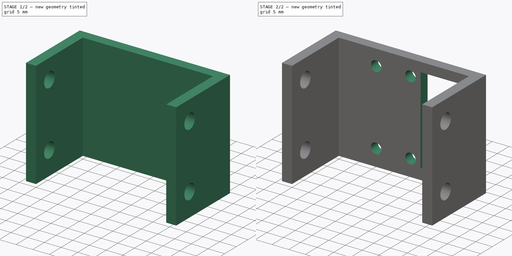
[diagram: build sequence overview — one tinted view per stage of 2, left to right]
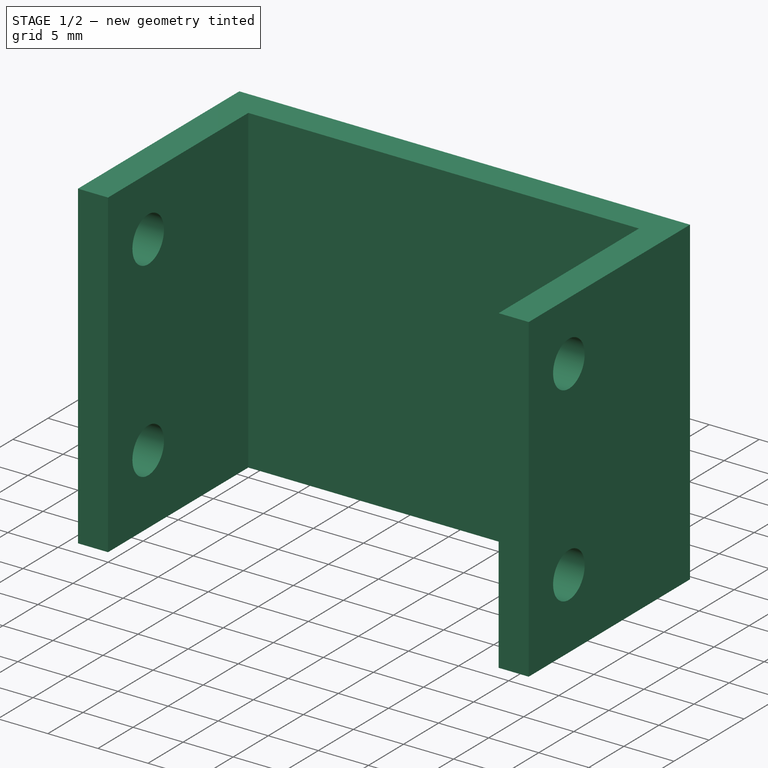
[diagram: stage 1 of 2 — iso view after this stage's code; geometry added in this stage tinted green]
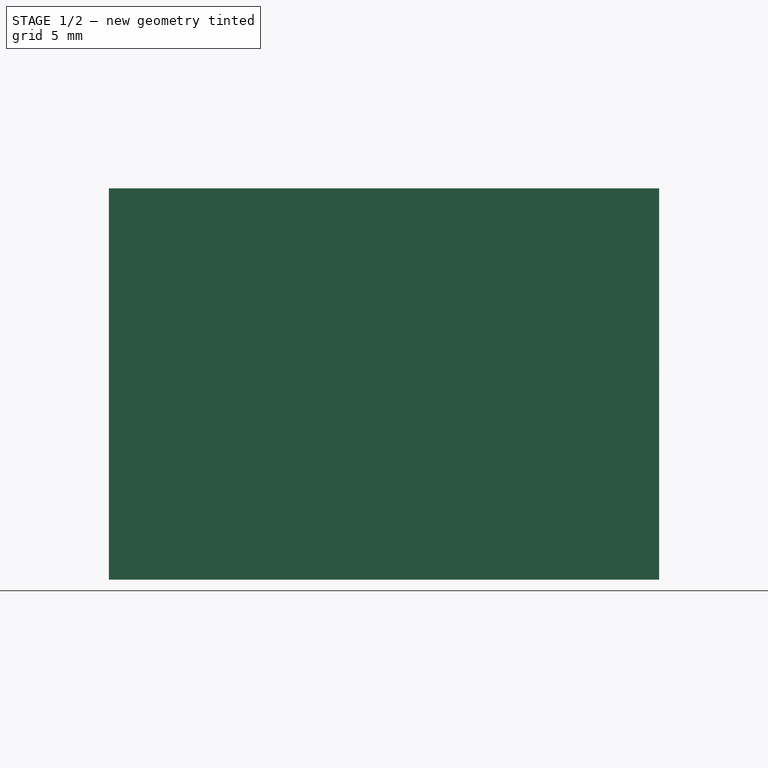
[diagram: stage 1 of 2 — front view after this stage's code; geometry added in this stage tinted green]
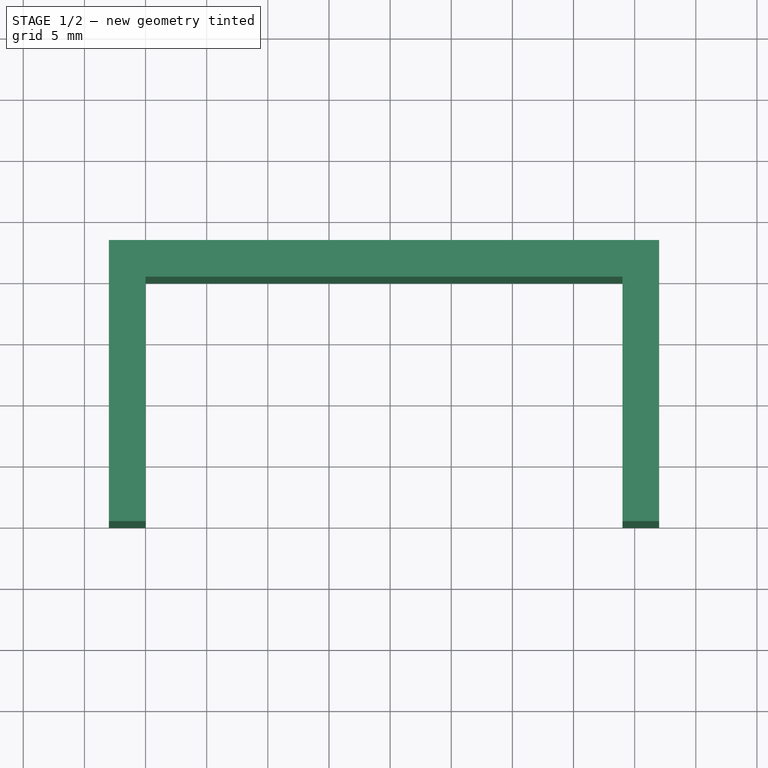
[diagram: stage 1 of 2 — top view after this stage's code; geometry added in this stage tinted green]
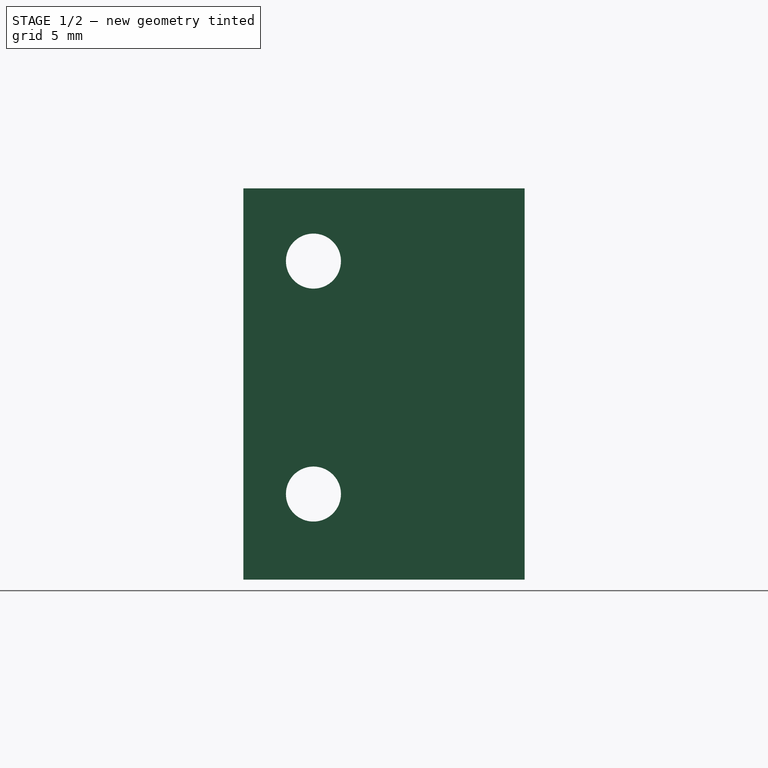
[diagram: stage 1 of 2 — right view after this stage's code; geometry added in this stage tinted green]
FCSTD DOCUMENT  (FreeCAD 0.18.4R)
Label: Soporte_Microswitch
License: All rights reserved
LicenseURL: http://en.wikipedia.org/wiki/All_rights_reserved
objects: Sketcher::SketchObject×3, PartDesign::Pocket×2, PartDesign::Pad×1, PartDesign::Body×1
note: 10 computed .brp shape members not serialized (recipe doc carries the construction recipe); baked Part::Feature solids carry a one-line shape summary decoded from their .brp

FEATURE [Sketcher::SketchObject] Sketch
  MapMode = 5
  Support = -> [XY_Plane]
  expr: Constraints[17] = 38.5 + 0.5
  sketch-geometry (9):
    g0: LineSegment StartX=-3 StartY=3 StartZ=0 EndX=-3 EndY=-20 EndZ=0
    g1: LineSegment StartX=38.5 StartY=0 StartZ=0 EndX=38.5 EndY=0.0202218 EndZ=0
    g2: LineSegment StartX=42 StartY=3 StartZ=0 EndX=42 EndY=-20 EndZ=0
    g3: LineSegment StartX=-3 StartY=-20 StartZ=0 EndX=0 EndY=-20 EndZ=0
    g4: LineSegment StartX=0 StartY=-20 StartZ=0 EndX=0 EndY=0 EndZ=0
    g5: LineSegment StartX=0 StartY=0 StartZ=0 EndX=39 EndY=0 EndZ=0
    g6: LineSegment StartX=39 StartY=0 StartZ=0 EndX=39 EndY=-20 EndZ=0
    g7: LineSegment StartX=39 StartY=-20 StartZ=0 EndX=42 EndY=-20 EndZ=0
    g8: LineSegment StartX=-3 StartY=3 StartZ=0 EndX=42 EndY=3 EndZ=0
  constraints (25):
    c: Vertical(g1)
    c: Vertical(g2)
    c: Equal(g2,g0)
    c: Vertical(g0)
    c: Coincident(g3,g0)
    c: PointOnObject(g3,g-2)
    c: Horizontal(g3)
    c: Coincident(g4,g3)
    c: Coincident(g5,g4)
    c: Horizontal(g5)
    c: Coincident(g6,g5)
    c: Vertical(g6)
    c: Coincident(g7,g6)
    c: Coincident(g7,g2)
    c: Equal(g0,g2)
    c: Horizontal(g7)
    c: DistanceX(g5,g2) = 3
    c: DistanceX(g5,g5) = 39
    c: Coincident(g8,g0)
    c: Coincident(g8,g2)
    c: Horizontal(g8)
    c: DistanceY(g4,g0) = 3
    c: DistanceY(g4,g4) = 20
    c: Equal(g7,g3)
    c: Coincident(g4,g-1)
FEATURE [PartDesign::Pad] Pad
  Length = 32
  Length2 = 100
  Profile = -> Sketch
  Type = 0
FEATURE [Sketcher::SketchObject] Sketch002
  MapMode = 5
  Placement = pos=(-3,0,0) rot=(0.57735,-0.57735,-0.57735;2.0944rad)
  Support = -> [Pad]
  expr: Constraints[11] = (4 + 0.5) / 2
  expr: Constraints[9] = (1.5 - 0.77) / 2 * 25.4 + 5
  expr: Constraints[8] = 0.75 * 25.4
  sketch-geometry (6):
    g0: Circle CenterX=14.271 CenterY=7 CenterZ=0 NormalX=0 NormalY=0 NormalZ=1 AngleXU=0 Radius=2.25
    g1: LineSegment [constr] StartX=14.271 StartY=26.05 StartZ=0 EndX=19.1549 EndY=26.05 EndZ=0
    g2: LineSegment [constr] StartX=19.1549 StartY=26.05 StartZ=0 EndX=19.1549 EndY=7 EndZ=0
    g3: LineSegment [constr] StartX=19.1549 StartY=7 StartZ=0 EndX=14.271 EndY=7 EndZ=0
    g4: LineSegment [constr] StartX=14.271 StartY=7 StartZ=0 EndX=14.271 EndY=26.05 EndZ=0
    g5: Circle CenterX=14.271 CenterY=26.05 CenterZ=0 NormalX=0 NormalY=0 NormalZ=1 AngleXU=0 Radius=2.25
  constraints (15):
    c: Coincident(g1,g2)
    c: Coincident(g2,g3)
    c: Coincident(g3,g4)
    c: Coincident(g4,g1)
    c: Horizontal(g1)
    c: Horizontal(g3)
    c: Vertical(g2)
    c: Vertical(g4)
    c: DistanceY(g4,g4) = 19.05
    c: DistanceX(g-1,g3) = 14.271
    c: DistanceY(g-1,g3) = 7
    c: Radius(g0) = 2.25
    c: Coincident(g0,g3)
    c: Coincident(g5,g1)
    c: Equal(g5,g0)
FEATURE [PartDesign::Pocket] Pocket
  BaseFeature = -> Pad
  Length = 5
  Length2 = 100
  Profile = -> Sketch002
  Type = 1
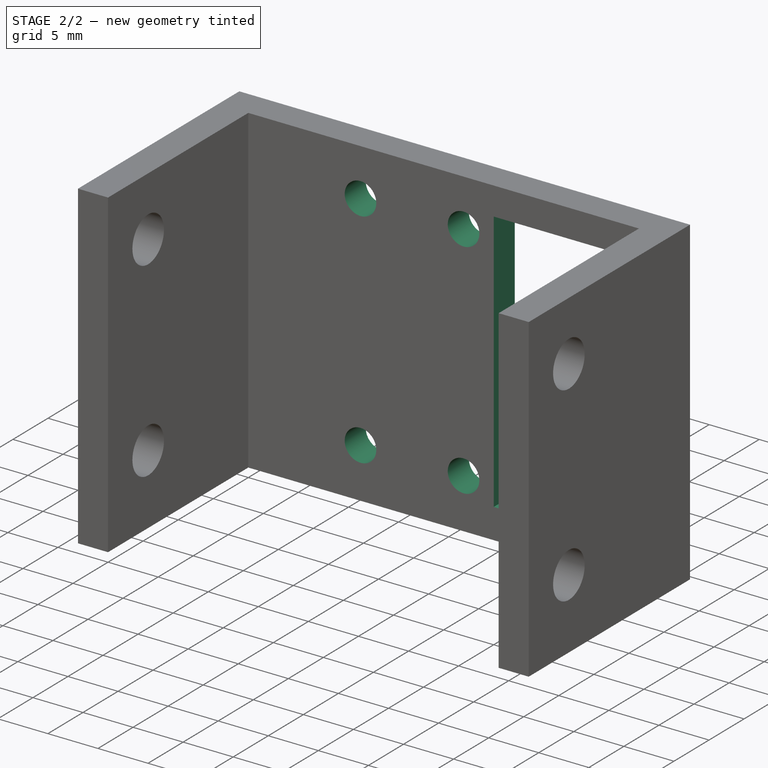
[diagram: stage 2 of 2 — iso view after this stage's code; geometry added in this stage tinted green]
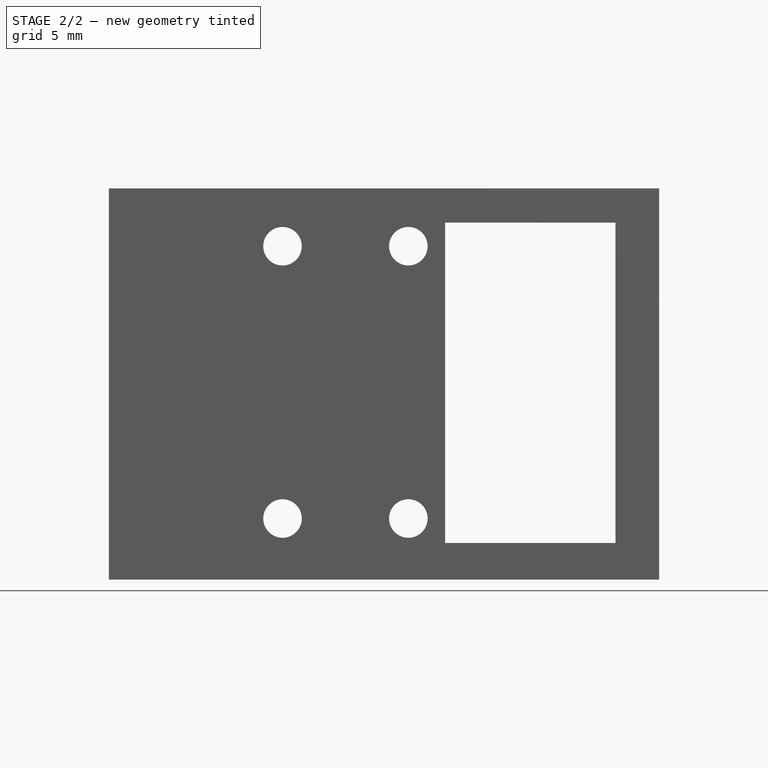
[diagram: stage 2 of 2 — front view after this stage's code; geometry added in this stage tinted green]
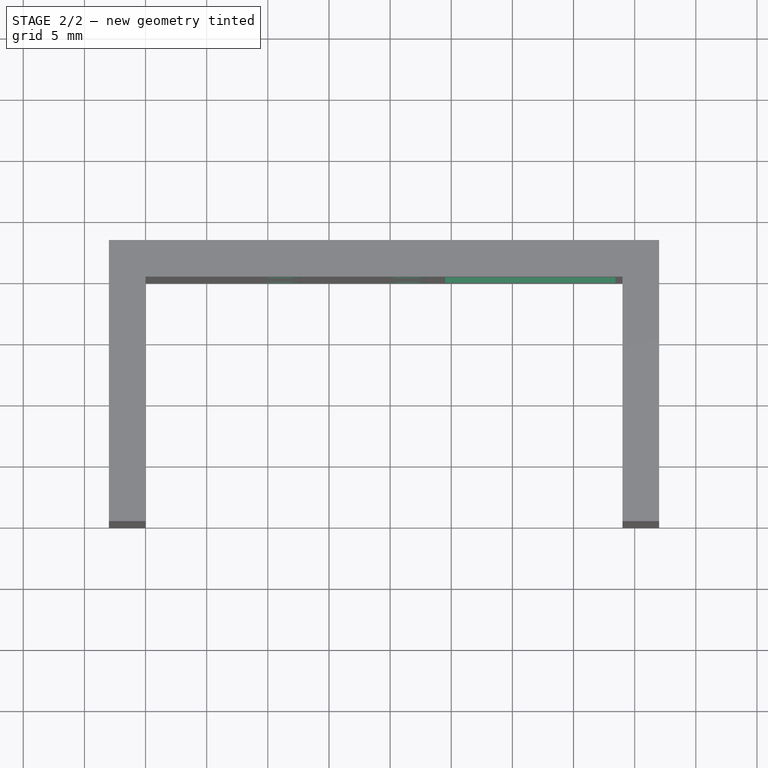
[diagram: stage 2 of 2 — top view after this stage's code; geometry added in this stage tinted green]
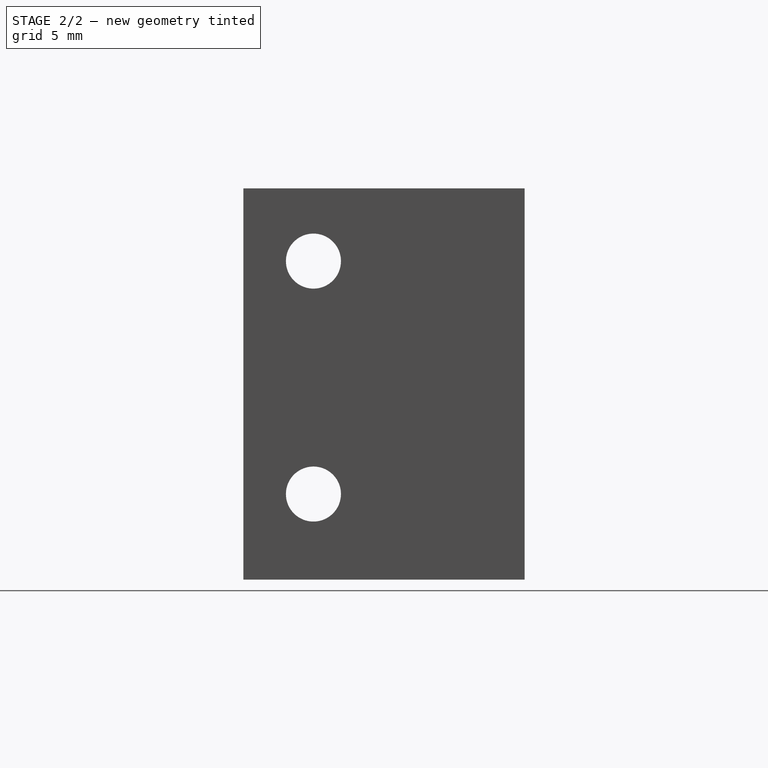
[diagram: stage 2 of 2 — right view after this stage's code; geometry added in this stage tinted green]
FEATURE [Sketcher::SketchObject] Sketch003
  MapMode = 5
  Placement = pos=(0,3,0) rot=(0,0.707107,0.707107;3.14159rad)
  Support = -> [Pocket]
  expr: Constraints[12] = 3.15 / 2
  expr: Constraints[10] = 3.4 + 2.8 + 3 + 2
  sketch-geometry (30):
    g0: LineSegment [constr] StartX=11.2 StartY=5 StartZ=0 EndX=21.5 EndY=5 EndZ=0
    g1: LineSegment [constr] StartX=21.5 StartY=5 StartZ=0 EndX=21.5 EndY=27.2 EndZ=0
    g2: LineSegment [constr] StartX=21.5 StartY=27.2 StartZ=0 EndX=11.2 EndY=27.2 EndZ=0
    g3: LineSegment [constr] StartX=11.2 StartY=27.2 StartZ=0 EndX=11.2 EndY=5 EndZ=0
    g4: Circle [constr] CenterX=11.2 CenterY=5 CenterZ=0 NormalX=0 NormalY=0 NormalZ=1 AngleXU=0 Radius=1.575
    g5: Circle [constr] CenterX=21.5 CenterY=27.2 CenterZ=0 NormalX=0 NormalY=0 NormalZ=1 AngleXU=0 Radius=1.575
    g6: LineSegment [constr] StartX=21.5003 StartY=27.2 StartZ=0 EndX=38.5492 EndY=27.2 EndZ=0
    g7: LineSegment [constr] StartX=38.6459 StartY=27.2 StartZ=0 EndX=38.6459 EndY=5 EndZ=0
    g8: LineSegment [constr] StartX=38.6459 StartY=5 StartZ=0 EndX=21.5959 EndY=5 EndZ=0
    g9: LineSegment [constr] StartX=21.5959 StartY=5 StartZ=0 EndX=21.5959 EndY=27.2 EndZ=0
    g10: LineSegment [constr] StartX=38.4337 StartY=29.2 StartZ=0 EndX=24.5 EndY=29.2 EndZ=0
    g11: LineSegment [constr] StartX=24.5 StartY=29.2 StartZ=0 EndX=24.5 EndY=3 EndZ=0
    g12: LineSegment [constr] StartX=24.5 StartY=3 StartZ=0 EndX=38.4337 EndY=3 EndZ=0
    g13: LineSegment [constr] StartX=38.4337 StartY=3 StartZ=0 EndX=38.4337 EndY=29.2 EndZ=0
    g14: LineSegment [constr] StartX=-11.2 StartY=5 StartZ=0 EndX=-21.4901 EndY=5 EndZ=0
    g15: LineSegment [constr] StartX=-21.4901 StartY=5 StartZ=0 EndX=-21.4901 EndY=27.2675 EndZ=0
    g16: LineSegment [constr] StartX=-21.4901 StartY=27.2675 StartZ=0 EndX=-11.2 EndY=27.2675 EndZ=0
    g17: LineSegment [constr] StartX=-11.2 StartY=27.2675 StartZ=0 EndX=-11.2 EndY=5 EndZ=0
    g18: Circle CenterX=-11.2 CenterY=5 CenterZ=0 NormalX=0 NormalY=0 NormalZ=1 AngleXU=0 Radius=1.575
    g19: Circle CenterX=-21.4901 CenterY=27.2675 CenterZ=0 NormalX=0 NormalY=0 NormalZ=1 AngleXU=0 Radius=1.575
    g20: LineSegment [constr] StartX=-21.5959 StartY=27.2675 StartZ=0 EndX=-38.5492 EndY=27.2675 EndZ=0
    g21: LineSegment [constr] StartX=-38.6459 StartY=27.2 StartZ=0 EndX=-38.6459 EndY=5 EndZ=0
    g22: LineSegment [constr] StartX=-38.6459 StartY=5 StartZ=0 EndX=-21.5959 EndY=5 EndZ=0
    g23: LineSegment [constr] StartX=-21.5959 StartY=5 StartZ=0 EndX=-21.5959 EndY=27.2675 EndZ=0
    g24: LineSegment StartX=-38.4337 StartY=29.2 StartZ=0 EndX=-24.5 EndY=29.2 EndZ=0
    g25: LineSegment StartX=-24.5 StartY=29.2 StartZ=0 EndX=-24.5 EndY=3 EndZ=0
    g26: LineSegment StartX=-24.5 StartY=3 StartZ=0 EndX=-38.4337 EndY=3 EndZ=0
    g27: LineSegment StartX=-38.4337 StartY=3 StartZ=0 EndX=-38.4337 EndY=29.2 EndZ=0
    g28: Circle CenterX=-11.2 CenterY=27.2675 CenterZ=0 NormalX=0 NormalY=0 NormalZ=1 AngleXU=0 Radius=1.575
    g29: Circle CenterX=-21.4901 CenterY=5 CenterZ=0 NormalX=0 NormalY=0 NormalZ=1 AngleXU=0 Radius=1.575
  constraints (64):
    c: Coincident(g0,g1)
    c: Coincident(g1,g2)
    c: Coincident(g2,g3)
    c: Coincident(g3,g0)
    c: Horizontal(g0)
    c: Horizontal(g2)
    c: Vertical(g1)
    c: Vertical(g3)
    c: DistanceX(g2,g2) = 10.3
    c: DistanceY(g3,g3) = 22.2
    c: DistanceX(g-1,g0) = 11.2
    c: Coincident(g4,g0)
    c: Radius(g4) = 1.575
    c: Coincident(g5,g1)
    c: Equal(g5,g4)
    c: Coincident(g7,g8)
    c: Coincident(g8,g9)
    c: Vertical(g7)
    c: Vertical(g9)
    c: Coincident(g10,g11)
    c: Coincident(g11,g12)
    c: Coincident(g12,g13)
    c: Coincident(g13,g10)
    c: Horizontal(g10)
    c: Horizontal(g12)
    c: Vertical(g11)
    c: Vertical(g13)
    c: DistanceY(g-1,g4) = 5
    c: Tangent(g8,g0)
    c: DistanceY(g6,g10) = 2
    c: DistanceY(g12,g7) = 2
    c: Tangent(g6,g2)
    c: DistanceX(g5,g10) = 3
    c: Coincident(g14,g15)
    c: Coincident(g15,g16)
    c: Coincident(g16,g17)
    c: Coincident(g17,g14)
    c: Horizontal(g14)
    c: Horizontal(g16)
    c: Vertical(g15)
    c: Vertical(g17)
    c: Coincident(g18,g14)
    c: Radius(g18) = 1.575
    c: Coincident(g19,g15)
    c: Equal(g19,g18)
    c: Coincident(g21,g22)
    c: Coincident(g22,g23)
    c: Vertical(g21)
    c: Vertical(g23)
    c: Coincident(g24,g25)
    c: Coincident(g25,g26)
    c: Coincident(g26,g27)
    c: Coincident(g27,g24)
    c: Horizontal(g24)
    c: Horizontal(g26)
    c: Vertical(g25)
    c: Vertical(g27)
    c: Tangent(g22,g14)
    c: Tangent(g20,g16)
    c: Coincident(g28,g16)
    c: Coincident(g29,g14)
    c: Coincident(g20,g23)
    c: Equal(g28,g29)
    c: Equal(g29,g18)
FEATURE [PartDesign::Pocket] Pocket001
  BaseFeature = -> Pocket
  Length = 5
  Length2 = 100
  Profile = -> Sketch003
  Type = 0
FEATURE [PartDesign::Body] Body
  Group = -> [Sketch,Pad,Sketch002,Pocket,Sketch003,Pocket001]
  Origin = -> Origin
  Tip = -> Pocket001
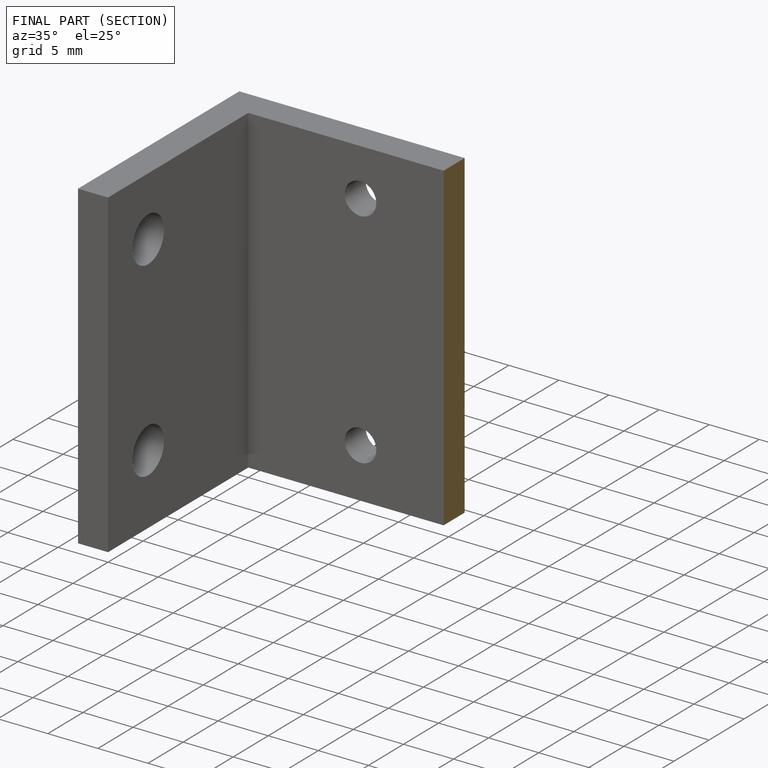
[diagram: finished part — half-section view (interior)]
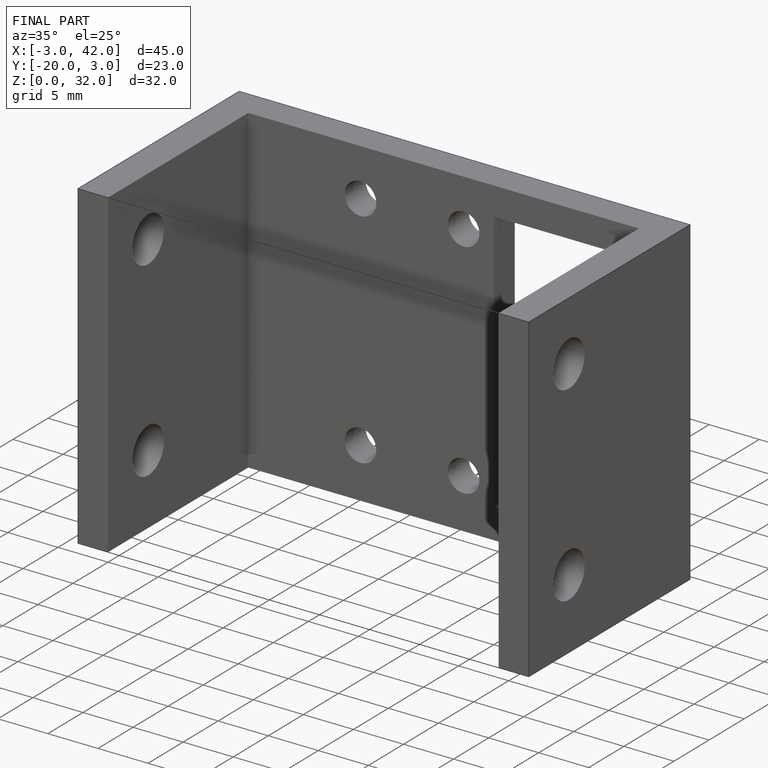
[diagram: finished part — iso view with bounding-box wireframe]
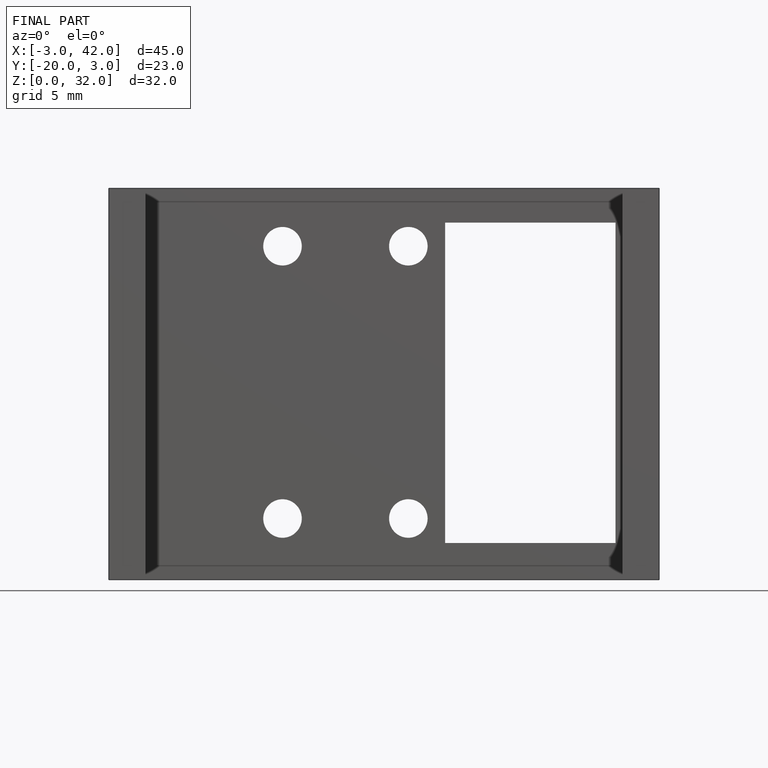
[diagram: finished part — front view with bounding-box wireframe]
